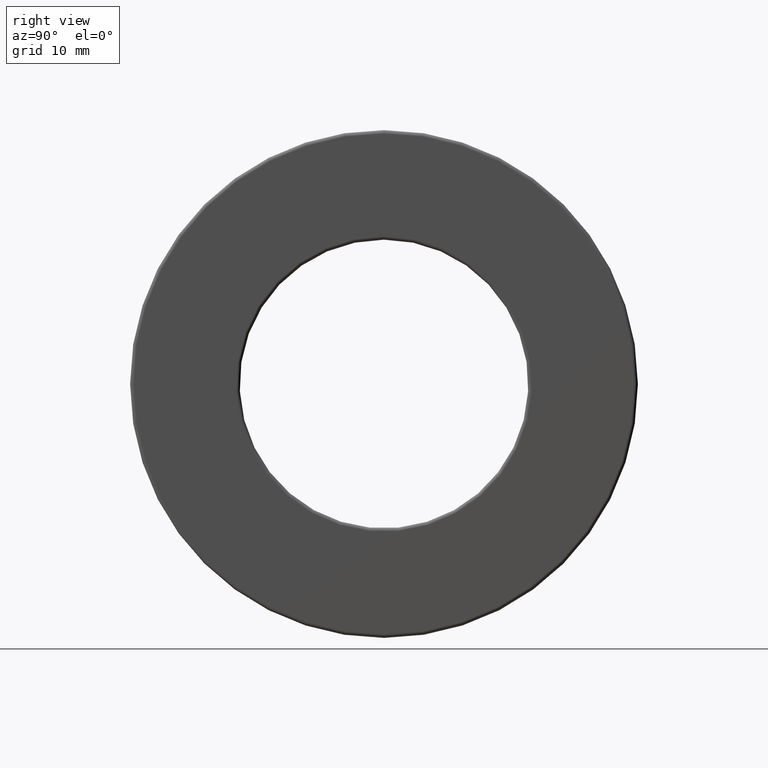
[diagram: clean part render]
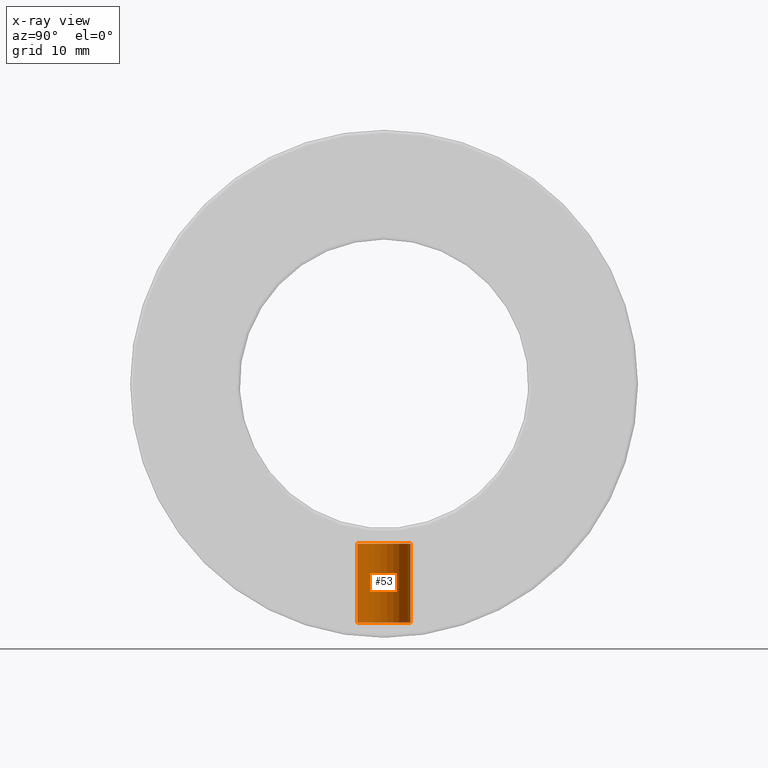
[diagram: x-ray — body ghosted, one internal face saturated and labeled with its STEP entity id]
A machine part, right view, then the same camera in x-ray: the body is ghosted and one INTERNAL B-rep face — a face not visible from any outside direction — is saturated and labeled: STEP entity #53.
In plain terms, the highlighted cylindrical surface (bore or boss wall) has radius 3.9624 mm, axis along (0, -0, -1).
Its self-contained STEP definition (entity closure, byte-faithful):
#53 = ADVANCED_FACE ( 'NONE', ( #1240, #389 ), #1227, .T. ) ;
#89 = CARTESIAN_POINT ( 'NONE',  ( 0.0000000000000000000, -4.868434291849393000E-015, -1.394374999999999700 ) ) ;
#108 = DIRECTION ( 'NONE',  ( 0.0000000000000000000, 1.000000000000000000, -3.502369222646491400E-015 ) ) ;
#130 = CARTESIAN_POINT ( 'NONE',  ( 0.0000000000000000000, 0.0000000000000000000, 0.0000000000000000000 ) ) ;
#242 = AXIS2_PLACEMENT_3D ( 'NONE', #130, #813, #472 ) ;
#273 = AXIS2_PLACEMENT_3D ( 'NONE', #1439, #1456, #108 ) ;
#353 = EDGE_LOOP ( 'NONE', ( #382 ) ) ;
#366 = VERTEX_POINT ( 'NONE', #716 ) ;
#382 = ORIENTED_EDGE ( 'NONE', *, *, #1399, .F. ) ;
#389 = FACE_OUTER_BOUND ( 'NONE', #353, .T. ) ;
#421 = CIRCLE ( 'NONE', #273, 0.1560000000000000000 ) ;
#472 = DIRECTION ( 'NONE',  ( 0.0000000000000000000, 1.000000000000000000, -3.491481338843133400E-015 ) ) ;
#510 = EDGE_LOOP ( 'NONE', ( #942 ) ) ;
#673 = DIRECTION ( 'NONE',  ( 0.0000000000000000000, 1.000000000000000000, -3.502369222646494500E-015 ) ) ;
#716 = CARTESIAN_POINT ( 'NONE',  ( 0.0000000000000000000, 0.1559999999999967500, -0.9337500000000006400 ) ) ;
#813 = DIRECTION ( 'NONE',  ( 0.0000000000000000000, -3.491481338843133400E-015, -1.000000000000000000 ) ) ;
#832 = EDGE_CURVE ( 'NONE', #366, #366, #421, .T. ) ;
#942 = ORIENTED_EDGE ( 'NONE', *, *, #832, .T. ) ;
#995 = AXIS2_PLACEMENT_3D ( 'NONE', #89, #1015, #673 ) ;
#1008 = CARTESIAN_POINT ( 'NONE',  ( 0.0000000000000000000, 0.1559999999999949800, -1.394375000000000400 ) ) ;
#1015 = DIRECTION ( 'NONE',  ( 0.0000000000000000000, -3.491481338843133400E-015, -1.000000000000000000 ) ) ;
#1093 = CIRCLE ( 'NONE', #995, 0.1559999999999998600 ) ;
#1227 = CYLINDRICAL_SURFACE ( 'NONE', #242, 0.1559999999999999200 ) ;
#1240 = FACE_OUTER_BOUND ( 'NONE', #510, .T. ) ;
#1399 = EDGE_CURVE ( 'NONE', #1460, #1460, #1093, .T. ) ;
#1439 = CARTESIAN_POINT ( 'NONE',  ( 0.0000000000000000000, -3.260170700144776200E-015, -0.9337500000000000800 ) ) ;
#1456 = DIRECTION ( 'NONE',  ( 0.0000000000000000000, -3.491481338843133400E-015, -1.000000000000000000 ) ) ;
#1460 = VERTEX_POINT ( 'NONE', #1008 ) ;